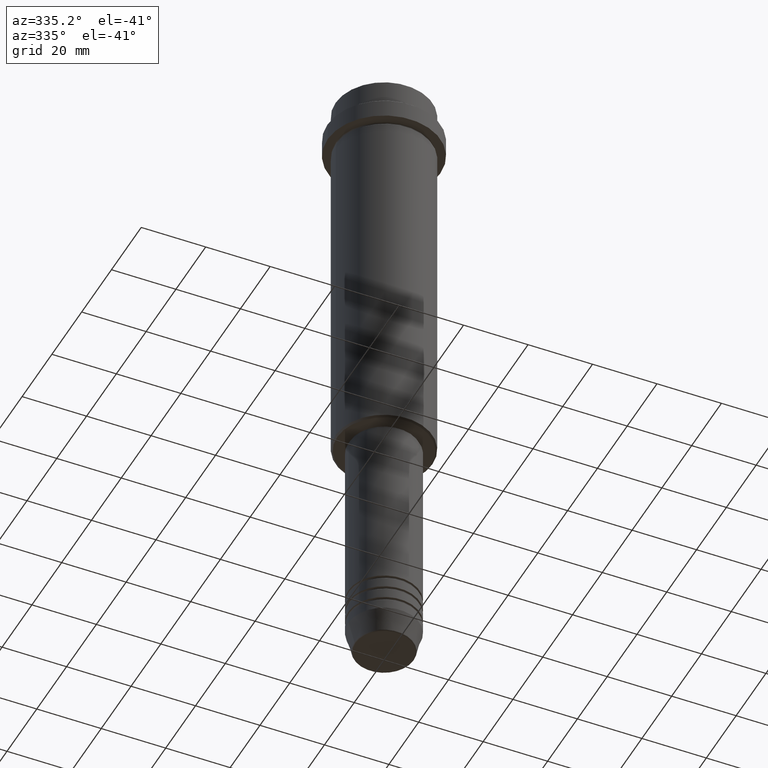
[diagram: clean part render]
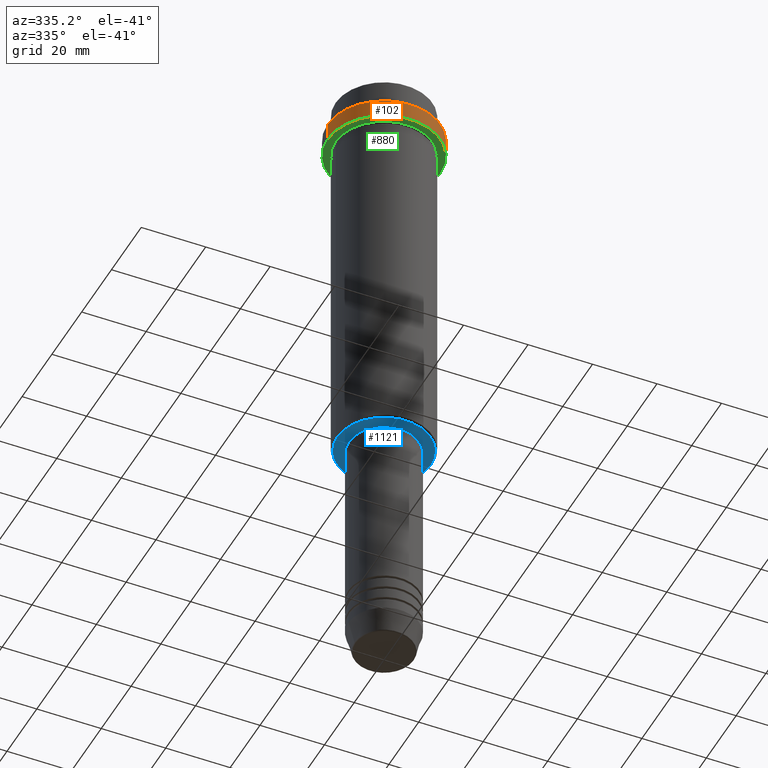
[diagram: same view with three faces highlighted in distinct colors, each labeled with its STEP entity id]
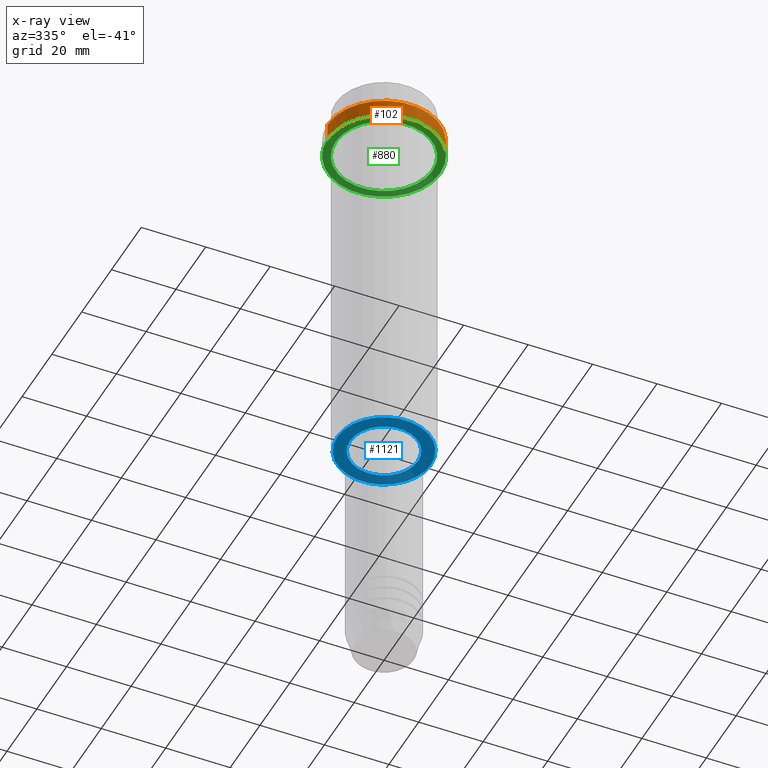
[diagram: x-ray of the same camera — body ghosted, the three highlighted faces saturated]
A machine part, auxiliary view with three faces highlighted in distinct colors.
The next image is the same camera in x-ray (body ghosted, the three faces saturated) — at least one of them is partly hidden behind the body in this view.
Their STEP definitions:

[orange] entity #102 — the highlighted cylindrical surface (partial cylindrical patch) has radius 17.5 mm, axis along (-0, -0, 1).
#80 = VERTEX_POINT ( 'NONE', #875 ) ;
#102 = ADVANCED_FACE ( 'NONE', ( #223 ), #1292, .T. ) ;
#152 = EDGE_LOOP ( 'NONE', ( #163, #675, #397, #1156 ) ) ;
#163 = ORIENTED_EDGE ( 'NONE', *, *, #395, .F. ) ;
#223 = FACE_OUTER_BOUND ( 'NONE', #152, .T. ) ;
#229 = VERTEX_POINT ( 'NONE', #802 ) ;
#297 = EDGE_CURVE ( 'NONE', #229, #80, #430, .T. ) ;
#313 = CARTESIAN_POINT ( 'NONE',  ( 0.000000000000000000, 0.000000000000000000, -15.00000000000000000 ) ) ;
#319 = AXIS2_PLACEMENT_3D ( 'NONE', #964, #1183, #994 ) ;
#321 = AXIS2_PLACEMENT_3D ( 'NONE', #313, #884, #751 ) ;
#378 = CARTESIAN_POINT ( 'NONE',  ( -17.50000000000000000, 2.143131898507868248E-15, -15.00000000000000000 ) ) ;
#382 = CARTESIAN_POINT ( 'NONE',  ( 17.50000000000000000, 0.000000000000000000, 0.000000000000000000 ) ) ;
#395 = EDGE_CURVE ( 'NONE', #857, #80, #949, .T. ) ;
#397 = ORIENTED_EDGE ( 'NONE', *, *, #1182, .T. ) ;
#430 = CIRCLE ( 'NONE', #1274, 17.50000000000000000 ) ;
#588 = DIRECTION ( 'NONE',  ( -0.000000000000000000, -0.000000000000000000, 1.000000000000000000 ) ) ;
#599 = EDGE_CURVE ( 'NONE', #857, #1022, #614, .T. ) ;
#614 = CIRCLE ( 'NONE', #321, 17.50000000000000000 ) ;
#675 = ORIENTED_EDGE ( 'NONE', *, *, #599, .T. ) ;
#751 = DIRECTION ( 'NONE',  ( 1.000000000000000000, 0.000000000000000000, 0.000000000000000000 ) ) ;
#802 = CARTESIAN_POINT ( 'NONE',  ( 17.50000000000000000, 0.000000000000000000, -9.500000000000000000 ) ) ;
#857 = VERTEX_POINT ( 'NONE', #378 ) ;
#875 = CARTESIAN_POINT ( 'NONE',  ( -17.50000000000000000, 2.143131898507868248E-15, -9.500000000000000000 ) ) ;
#884 = DIRECTION ( 'NONE',  ( -0.000000000000000000, -0.000000000000000000, 1.000000000000000000 ) ) ;
#898 = DIRECTION ( 'NONE',  ( 1.000000000000000000, 0.000000000000000000, 0.000000000000000000 ) ) ;
#949 = LINE ( 'NONE', #1054, #1172 ) ;
#964 = CARTESIAN_POINT ( 'NONE',  ( 0.000000000000000000, 0.000000000000000000, 0.000000000000000000 ) ) ;
#986 = CARTESIAN_POINT ( 'NONE',  ( 17.50000000000000000, 0.000000000000000000, -15.00000000000000000 ) ) ;
#994 = DIRECTION ( 'NONE',  ( 1.000000000000000000, 0.000000000000000000, 0.000000000000000000 ) ) ;
#1022 = VERTEX_POINT ( 'NONE', #986 ) ;
#1027 = DIRECTION ( 'NONE',  ( -0.000000000000000000, -0.000000000000000000, 1.000000000000000000 ) ) ;
#1054 = CARTESIAN_POINT ( 'NONE',  ( -17.50000000000000000, 2.143131898507868248E-15, 0.000000000000000000 ) ) ;
#1156 = ORIENTED_EDGE ( 'NONE', *, *, #297, .T. ) ;
#1172 = VECTOR ( 'NONE', #588, 1000.000000000000000 ) ;
#1182 = EDGE_CURVE ( 'NONE', #1022, #229, #1354, .T. ) ;
#1183 = DIRECTION ( 'NONE',  ( -0.000000000000000000, -0.000000000000000000, 1.000000000000000000 ) ) ;
#1192 = VECTOR ( 'NONE', #1027, 1000.000000000000000 ) ;
#1213 = DIRECTION ( 'NONE',  ( 0.000000000000000000, 0.000000000000000000, -1.000000000000000000 ) ) ;
#1234 = CARTESIAN_POINT ( 'NONE',  ( 0.000000000000000000, 0.000000000000000000, -9.500000000000000000 ) ) ;
#1274 = AXIS2_PLACEMENT_3D ( 'NONE', #1234, #1213, #898 ) ;
#1292 = CYLINDRICAL_SURFACE ( 'NONE', #319, 17.50000000000000000 ) ;
#1354 = LINE ( 'NONE', #382, #1192 ) ;

[blue] entity #1121 — the highlighted planar face has unit normal (0, 0, -1).
#29 = CARTESIAN_POINT ( 'NONE',  ( 14.50000000000001066, 0.000000000000000000, -125.0000000000000000 ) ) ;
#38 = VERTEX_POINT ( 'NONE', #733 ) ;
#132 = CIRCLE ( 'NONE', #1173, 14.50000000000001066 ) ;
#196 = EDGE_LOOP ( 'NONE', ( #387, #913 ) ) ;
#238 = DIRECTION ( 'NONE',  ( 1.000000000000000000, 0.000000000000000000, 0.000000000000000000 ) ) ;
#246 = PLANE ( 'NONE',  #437 ) ;
#271 = FACE_BOUND ( 'NONE', #1073, .T. ) ;
#370 = CARTESIAN_POINT ( 'NONE',  ( 0.000000000000000000, 0.000000000000000000, -125.0000000000000000 ) ) ;
#380 = VERTEX_POINT ( 'NONE', #818 ) ;
#387 = ORIENTED_EDGE ( 'NONE', *, *, #960, .T. ) ;
#437 = AXIS2_PLACEMENT_3D ( 'NONE', #701, #797, #1021 ) ;
#443 = DIRECTION ( 'NONE',  ( -1.000000000000000000, 0.000000000000000000, 0.000000000000000000 ) ) ;
#518 = DIRECTION ( 'NONE',  ( -0.000000000000000000, -0.000000000000000000, 1.000000000000000000 ) ) ;
#529 = AXIS2_PLACEMENT_3D ( 'NONE', #745, #631, #443 ) ;
#532 = AXIS2_PLACEMENT_3D ( 'NONE', #959, #518, #1382 ) ;
#624 = ORIENTED_EDGE ( 'NONE', *, *, #950, .T. ) ;
#631 = DIRECTION ( 'NONE',  ( 0.000000000000000000, 0.000000000000000000, -1.000000000000000000 ) ) ;
#701 = CARTESIAN_POINT ( 'NONE',  ( 0.000000000000000000, 15.00000000000000000, -125.0000000000000000 ) ) ;
#733 = CARTESIAN_POINT ( 'NONE',  ( -10.49999999999999289, 1.285879139104720042E-15, -125.0000000000000000 ) ) ;
#745 = CARTESIAN_POINT ( 'NONE',  ( 0.000000000000000000, 0.000000000000000000, -125.0000000000000000 ) ) ;
#749 = CARTESIAN_POINT ( 'NONE',  ( 10.49999999999999289, 0.000000000000000000, -125.0000000000000000 ) ) ;
#755 = ORIENTED_EDGE ( 'NONE', *, *, #1322, .T. ) ;
#797 = DIRECTION ( 'NONE',  ( 0.000000000000000000, 0.000000000000000000, -1.000000000000000000 ) ) ;
#817 = DIRECTION ( 'NONE',  ( -1.000000000000000000, 0.000000000000000000, 0.000000000000000000 ) ) ;
#818 = CARTESIAN_POINT ( 'NONE',  ( -14.50000000000001066, 1.806354028742346591E-15, -125.0000000000000000 ) ) ;
#867 = EDGE_CURVE ( 'NONE', #380, #1120, #132, .T. ) ;
#913 = ORIENTED_EDGE ( 'NONE', *, *, #867, .T. ) ;
#926 = DIRECTION ( 'NONE',  ( 0.000000000000000000, 0.000000000000000000, -1.000000000000000000 ) ) ;
#950 = EDGE_CURVE ( 'NONE', #1367, #38, #1211, .T. ) ;
#959 = CARTESIAN_POINT ( 'NONE',  ( 0.000000000000000000, 0.000000000000000000, -125.0000000000000000 ) ) ;
#960 = EDGE_CURVE ( 'NONE', #1120, #380, #1151, .T. ) ;
#1021 = DIRECTION ( 'NONE',  ( -1.000000000000000000, 0.000000000000000000, -0.000000000000000000 ) ) ;
#1034 = FACE_OUTER_BOUND ( 'NONE', #196, .T. ) ;
#1073 = EDGE_LOOP ( 'NONE', ( #624, #755 ) ) ;
#1120 = VERTEX_POINT ( 'NONE', #29 ) ;
#1121 = ADVANCED_FACE ( 'NONE', ( #1034, #271 ), #246, .T. ) ;
#1151 = CIRCLE ( 'NONE', #529, 14.50000000000001066 ) ;
#1173 = AXIS2_PLACEMENT_3D ( 'NONE', #370, #926, #817 ) ;
#1211 = CIRCLE ( 'NONE', #1323, 10.49999999999999289 ) ;
#1317 = CARTESIAN_POINT ( 'NONE',  ( 0.000000000000000000, 0.000000000000000000, -125.0000000000000000 ) ) ;
#1322 = EDGE_CURVE ( 'NONE', #38, #1367, #1417, .T. ) ;
#1323 = AXIS2_PLACEMENT_3D ( 'NONE', #1317, #1379, #238 ) ;
#1367 = VERTEX_POINT ( 'NONE', #749 ) ;
#1379 = DIRECTION ( 'NONE',  ( -0.000000000000000000, -0.000000000000000000, 1.000000000000000000 ) ) ;
#1382 = DIRECTION ( 'NONE',  ( 1.000000000000000000, 0.000000000000000000, 0.000000000000000000 ) ) ;
#1417 = CIRCLE ( 'NONE', #532, 10.49999999999999289 ) ;

[green] entity #880 — the highlighted planar face has unit normal (0, 0, -1).
#48 = ORIENTED_EDGE ( 'NONE', *, *, #1209, .F. ) ;
#53 = PLANE ( 'NONE',  #1277 ) ;
#164 = DIRECTION ( 'NONE',  ( -1.000000000000000000, 0.000000000000000000, -0.000000000000000000 ) ) ;
#207 = ORIENTED_EDGE ( 'NONE', *, *, #426, .T. ) ;
#313 = CARTESIAN_POINT ( 'NONE',  ( 0.000000000000000000, 0.000000000000000000, -15.00000000000000000 ) ) ;
#321 = AXIS2_PLACEMENT_3D ( 'NONE', #313, #884, #751 ) ;
#375 = DIRECTION ( 'NONE',  ( 1.000000000000000000, 0.000000000000000000, 0.000000000000000000 ) ) ;
#378 = CARTESIAN_POINT ( 'NONE',  ( -17.50000000000000000, 2.143131898507868248E-15, -15.00000000000000000 ) ) ;
#386 = CARTESIAN_POINT ( 'NONE',  ( 0.000000000000000000, 0.000000000000000000, -15.00000000000000000 ) ) ;
#406 = DIRECTION ( 'NONE',  ( -0.000000000000000000, -0.000000000000000000, 1.000000000000000000 ) ) ;
#426 = EDGE_CURVE ( 'NONE', #536, #597, #759, .T. ) ;
#480 = CARTESIAN_POINT ( 'NONE',  ( 0.000000000000000000, 0.000000000000000000, -15.00000000000000000 ) ) ;
#502 = EDGE_LOOP ( 'NONE', ( #48, #825 ) ) ;
#536 = VERTEX_POINT ( 'NONE', #1287 ) ;
#592 = CIRCLE ( 'NONE', #1257, 14.99999999999999467 ) ;
#597 = VERTEX_POINT ( 'NONE', #861 ) ;
#599 = EDGE_CURVE ( 'NONE', #857, #1022, #614, .T. ) ;
#614 = CIRCLE ( 'NONE', #321, 17.50000000000000000 ) ;
#620 = CIRCLE ( 'NONE', #1415, 17.50000000000000000 ) ;
#751 = DIRECTION ( 'NONE',  ( 1.000000000000000000, 0.000000000000000000, 0.000000000000000000 ) ) ;
#754 = EDGE_CURVE ( 'NONE', #597, #536, #592, .T. ) ;
#759 = CIRCLE ( 'NONE', #1124, 14.99999999999999467 ) ;
#788 = DIRECTION ( 'NONE',  ( -1.000000000000000000, 0.000000000000000000, 0.000000000000000000 ) ) ;
#825 = ORIENTED_EDGE ( 'NONE', *, *, #599, .F. ) ;
#838 = FACE_BOUND ( 'NONE', #956, .T. ) ;
#857 = VERTEX_POINT ( 'NONE', #378 ) ;
#861 = CARTESIAN_POINT ( 'NONE',  ( 14.99999999999999467, 1.836970198721029194E-15, -15.00000000000000000 ) ) ;
#880 = ADVANCED_FACE ( 'NONE', ( #838, #1259 ), #53, .T. ) ;
#884 = DIRECTION ( 'NONE',  ( -0.000000000000000000, -0.000000000000000000, 1.000000000000000000 ) ) ;
#889 = CARTESIAN_POINT ( 'NONE',  ( 0.000000000000000000, 0.000000000000000000, -15.00000000000000000 ) ) ;
#922 = DIRECTION ( 'NONE',  ( -0.000000000000000000, -0.000000000000000000, 1.000000000000000000 ) ) ;
#932 = DIRECTION ( 'NONE',  ( 0.000000000000000000, 0.000000000000000000, -1.000000000000000000 ) ) ;
#954 = ORIENTED_EDGE ( 'NONE', *, *, #754, .T. ) ;
#956 = EDGE_LOOP ( 'NONE', ( #207, #954 ) ) ;
#986 = CARTESIAN_POINT ( 'NONE',  ( 17.50000000000000000, 0.000000000000000000, -15.00000000000000000 ) ) ;
#1022 = VERTEX_POINT ( 'NONE', #986 ) ;
#1124 = AXIS2_PLACEMENT_3D ( 'NONE', #386, #406, #1373 ) ;
#1209 = EDGE_CURVE ( 'NONE', #1022, #857, #620, .T. ) ;
#1257 = AXIS2_PLACEMENT_3D ( 'NONE', #889, #1321, #788 ) ;
#1259 = FACE_OUTER_BOUND ( 'NONE', #502, .T. ) ;
#1265 = CARTESIAN_POINT ( 'NONE',  ( 0.000000000000000000, 17.50000000000000000, -15.00000000000000000 ) ) ;
#1277 = AXIS2_PLACEMENT_3D ( 'NONE', #1265, #932, #164 ) ;
#1287 = CARTESIAN_POINT ( 'NONE',  ( -14.99999999999999467, 0.000000000000000000, -15.00000000000000000 ) ) ;
#1321 = DIRECTION ( 'NONE',  ( -0.000000000000000000, -0.000000000000000000, 1.000000000000000000 ) ) ;
#1373 = DIRECTION ( 'NONE',  ( -1.000000000000000000, 0.000000000000000000, 0.000000000000000000 ) ) ;
#1415 = AXIS2_PLACEMENT_3D ( 'NONE', #480, #922, #375 ) ;